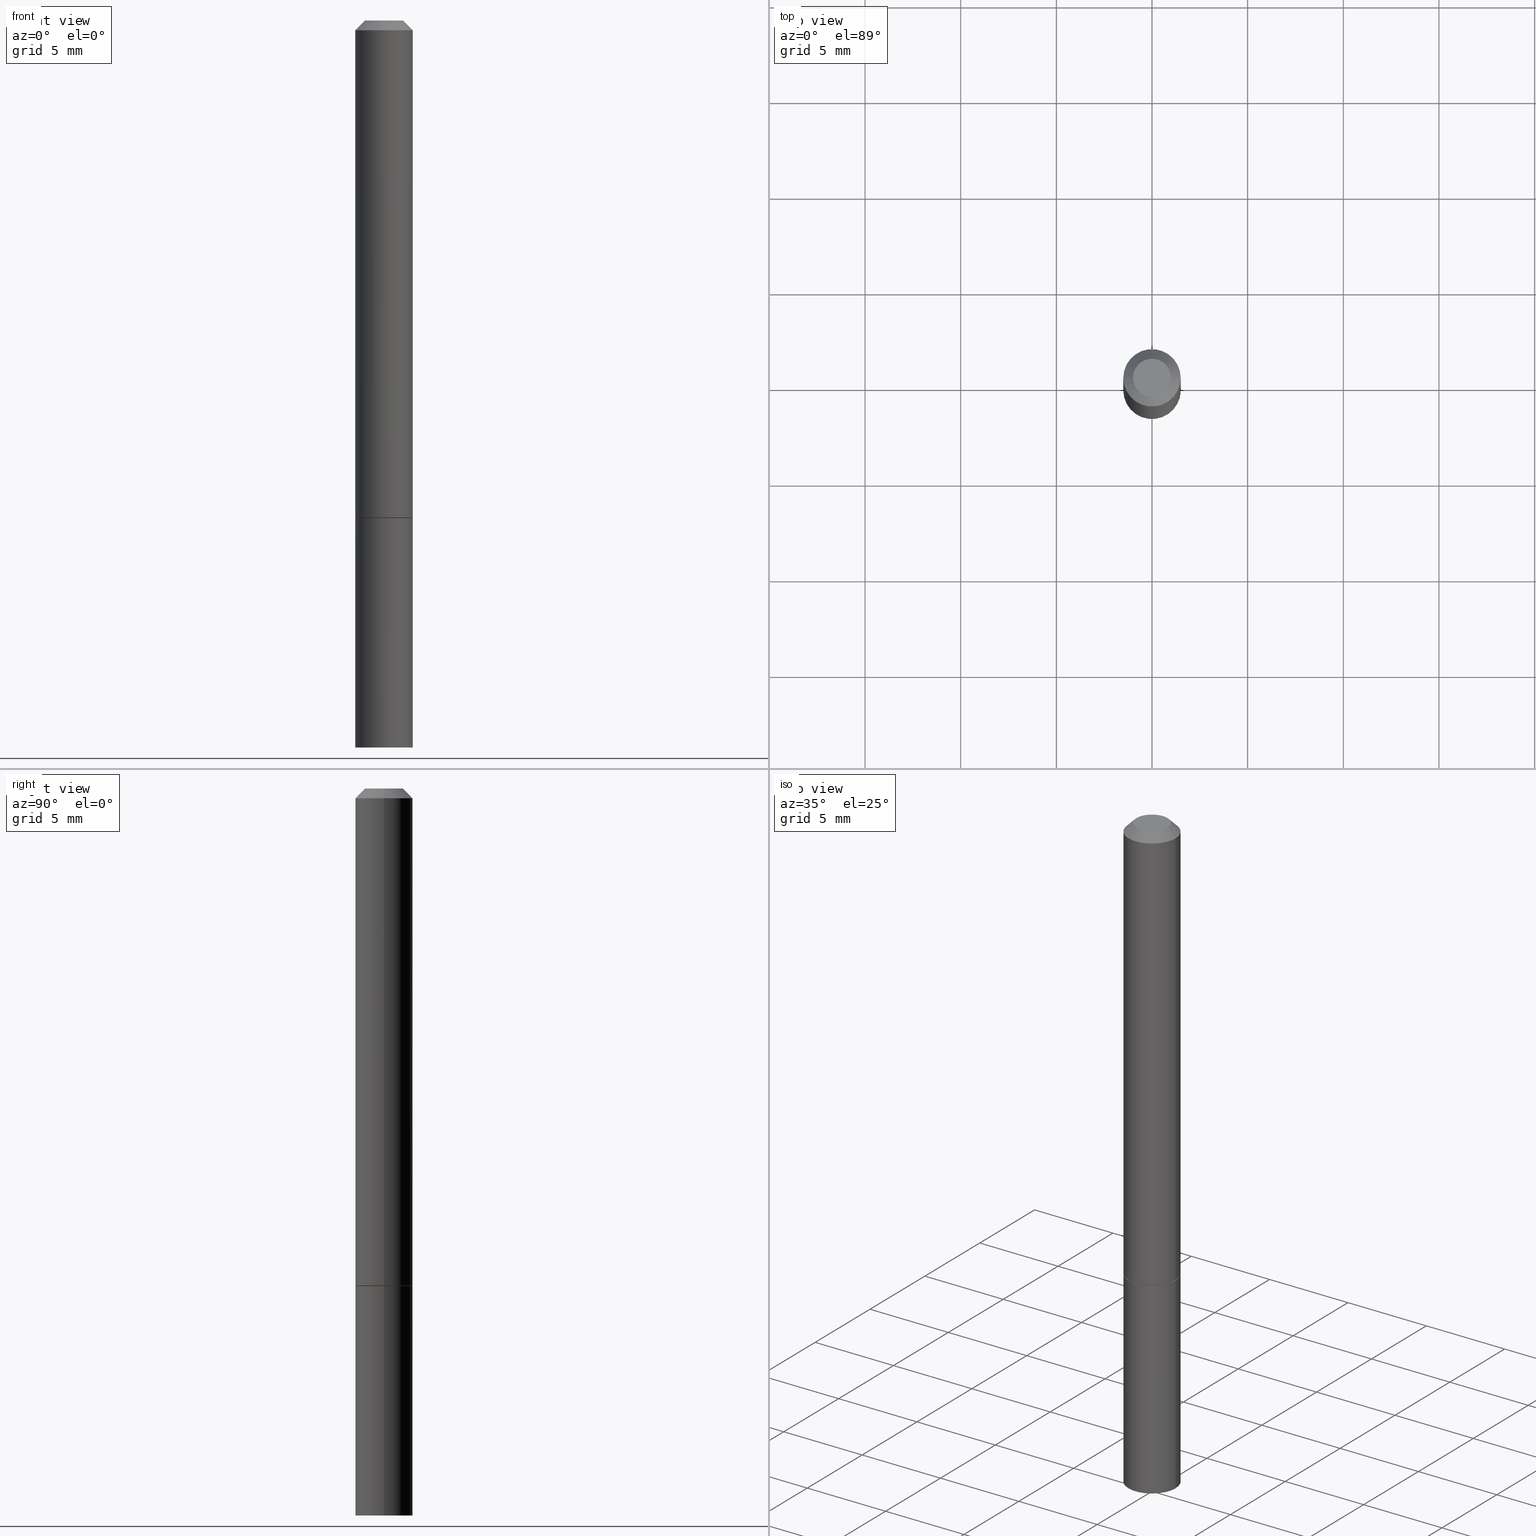
[diagram: canonical four-view strip — front | top / right | iso, engineering-drawing reading convention]
A machine part, canonical four-view strip (front | top / right | iso — engineering-drawing reading convention). The complete STEP part file that produces these views, byte-faithful:
ISO-10303-21;
HEADER;
FILE_DESCRIPTION (( 'STEP AP203' ),
    '1' );
FILE_NAME ('48504.STEP',
    '2024-02-28T11:12:14',
    ( '' ),
    ( '' ),
    'SwSTEP 2.0',
    'SolidWorks 2023',
    '' );
FILE_SCHEMA (( 'CONFIG_CONTROL_DESIGN' ));
ENDSEC;

DATA;
#1 = ORIENTED_EDGE ( 'NONE', *, *, #123, .F. ) ;
#2 = CIRCLE ( 'NONE', #361, 0.05904999999999988036 ) ;
#3 = DIRECTION ( 'NONE',  ( 2.438088387897960049E-29, -3.491481338843145188E-15, -1.000000000000000000 ) ) ;
#4 = APPROVAL_STATUS ( 'not_yet_approved' ) ;
#5 = CARTESIAN_POINT ( 'NONE',  ( 0.03904999999999989035, -3.714222401791245450E-16, -5.549066237130309406E-17 ) ) ;
#6 = DIRECTION ( 'NONE',  ( -0.7071067811866199593, 7.493145998870616062E-15, 0.7071067811864750752 ) ) ;
#7 = EDGE_CURVE ( 'NONE', #89, #288, #121, .T. ) ;
#8 = AXIS2_PLACEMENT_3D ( 'NONE', #220, #42, #218 ) ;
#9 = SECURITY_CLASSIFICATION_LEVEL ( 'unclassified' ) ;
#10 = FACE_OUTER_BOUND ( 'NONE', #79, .T. ) ;
#11 = ADVANCED_FACE ( 'NONE', ( #31 ), #255, .T. ) ;
#12 = AXIS2_PLACEMENT_3D ( 'NONE', #307, #276, #244 ) ;
#13 = DATE_TIME_ROLE ( 'classification_date' ) ;
#14 = CARTESIAN_POINT ( 'NONE',  ( -0.05805000000000001131, -3.161759388464989128E-15, -1.023699999999999832 ) ) ;
#15 = LOCAL_TIME ( 6, 12, 14.00000000000000000, #99 ) ;
#16 = ORIENTED_EDGE ( 'NONE', *, *, #140, .T. ) ;
#17 = CARTESIAN_POINT ( 'NONE',  ( 2.500980948085539022E-29, -3.570737965234884606E-15, -1.022699999999999942 ) ) ;
#18 = ORIENTED_EDGE ( 'NONE', *, *, #95, .F. ) ;
#19 = CARTESIAN_POINT ( 'NONE',  ( -0.05905000000000001914, -3.979341853342139538E-15, -1.496099999999999985 ) ) ;
#20 = ORIENTED_EDGE ( 'NONE', *, *, #300, .T. ) ;
#21 = DIRECTION ( 'NONE',  ( -2.445468806185136597E-29, 3.491481338843145583E-15, 1.000000000000000000 ) ) ;
#22 = AXIS2_PLACEMENT_3D ( 'NONE', #37, #174, #262 ) ;
#23 = AXIS2_PLACEMENT_3D ( 'NONE', #91, #77, #212 ) ;
#24 = VERTEX_POINT ( 'NONE', #60 ) ;
#25 = MANIFOLD_SOLID_BREP ( 'Body-Move/Copy2[1]', #240 ) ;
#26 = CARTESIAN_POINT ( 'NONE',  ( -0.03904999999999989035, 3.075995059520788882E-16, -5.549066237130737733E-17 ) ) ;
#27 = DIRECTION ( 'NONE',  ( 1.000000000000000000, -6.982962677686270655E-15, 0.000000000000000000 ) ) ;
#28 = COORDINATED_UNIVERSAL_TIME_OFFSET ( 5, 0, .BEHIND. ) ;
#29 = ORIENTED_EDGE ( 'NONE', *, *, #110, .F. ) ;
#30 = AXIS2_PLACEMENT_3D ( 'NONE', #292, #96, #69 ) ;
#31 = FACE_OUTER_BOUND ( 'NONE', #113, .T. ) ;
#32 = APPROVAL_PERSON_ORGANIZATION ( #203, #127, #68 ) ;
#33 = PERSON_AND_ORGANIZATION ( #102, #352 ) ;
#34 = DIRECTION ( 'NONE',  ( 0.7071067811866199593, -2.468850131083015945E-15, 0.7071067811864750752 ) ) ;
#35 = FACE_OUTER_BOUND ( 'NONE', #249, .T. ) ;
#36 = APPROVAL_STATUS ( 'not_yet_approved' ) ;
#37 = CARTESIAN_POINT ( 'NONE',  ( 1.357006838635785746E-45, -1.937446121494581442E-31, -5.549066237130534971E-17 ) ) ;
#38 = CARTESIAN_POINT ( 'NONE',  ( 0.05905000000000001914, -4.123439461173741806E-16, 2.879382386107500921E-30 ) ) ;
#39 = ADVANCED_FACE ( 'NONE', ( #56 ), #107, .F. ) ;
#40 = CARTESIAN_POINT ( 'NONE',  ( -0.05905000000000001914, -3.979341853342139538E-15, -1.023699999999999832 ) ) ;
#41 = SHAPE_DEFINITION_REPRESENTATION ( #115, #350 ) ;
#42 = DIRECTION ( 'NONE',  ( -2.445468806185136597E-29, 3.491481338843145583E-15, 1.000000000000000000 ) ) ;
#43 = AXIS2_PLACEMENT_3D ( 'NONE', #124, #318, #178 ) ;
#44 = APPROVAL_PERSON_ORGANIZATION ( #33, #187, #144 ) ;
#45 = CC_DESIGN_PERSON_AND_ORGANIZATION_ASSIGNMENT ( #228, #93, ( #299 ) ) ;
#46 = CARTESIAN_POINT ( 'NONE',  ( 0.000000000000000000, 0.000000000000000000, 0.000000000000000000 ) ) ;
#47 = ADVANCED_FACE ( 'NONE', ( #117 ), #326, .T. ) ;
#48 = FACE_OUTER_BOUND ( 'NONE', #207, .T. ) ;
#49 = FACE_OUTER_BOUND ( 'NONE', #57, .T. ) ;
#50 = VERTEX_POINT ( 'NONE', #66 ) ;
#51 = FACE_OUTER_BOUND ( 'NONE', #277, .T. ) ;
#52 = AXIS2_PLACEMENT_3D ( 'NONE', #322, #238, #94 ) ;
#53 = EDGE_LOOP ( 'NONE', ( #194, #18, #308, #302 ) ) ;
#54 = PERSON_AND_ORGANIZATION_ROLE ( 'design_owner' ) ;
#55 = ADVANCED_FACE ( 'NONE', ( #233 ), #76, .T. ) ;
#56 = FACE_OUTER_BOUND ( 'NONE', #283, .T. ) ;
#57 = EDGE_LOOP ( 'NONE', ( #1, #100 ) ) ;
#58 = LENGTH_MEASURE_WITH_UNIT ( LENGTH_MEASURE( 0.02539999999999999897 ), #224 );
#59 = AXIS2_PLACEMENT_3D ( 'NONE', #206, #145, #70 ) ;
#60 = CARTESIAN_POINT ( 'NONE',  ( 0.05905000000000001914, -3.986573392691101744E-15, -1.023699999999999832 ) ) ;
#61 = EDGE_CURVE ( 'NONE', #339, #366, #258, .T. ) ;
#62 = CALENDAR_DATE ( 2024, 28, 2 ) ;
#63 = DIRECTION ( 'NONE',  ( -2.445468806185136597E-29, 3.491481338843145583E-15, 1.000000000000000000 ) ) ;
#64 = COORDINATED_UNIVERSAL_TIME_OFFSET ( 5, 0, .BEHIND. ) ;
#65 = DIRECTION ( 'NONE',  ( -2.445468806185136877E-29, 3.491481338843145188E-15, 1.000000000000000000 ) ) ;
#66 = CARTESIAN_POINT ( 'NONE',  ( 0.05905000000000001914, -5.635949177160603791E-15, -1.496099999999999985 ) ) ;
#67 = CC_DESIGN_SECURITY_CLASSIFICATION ( #337, ( #299 ) ) ;
#68 = APPROVAL_ROLE ( '' ) ;
#69 = DIRECTION ( 'NONE',  ( 1.000000000000000000, -6.982962677686266711E-15, 0.000000000000000000 ) ) ;
#70 = DIRECTION ( 'NONE',  ( 1.000000000000000000, -6.982962677686270655E-15, 0.000000000000000000 ) ) ;
#71 = DATE_AND_TIME ( #320, #15 ) ;
#72 = EDGE_LOOP ( 'NONE', ( #165, #133, #16, #364 ) ) ;
#73 = EDGE_CURVE ( 'NONE', #272, #366, #184, .T. ) ;
#74 = VECTOR ( 'NONE', #186, 39.37007874015748143 ) ;
#75 = PLANE ( 'NONE',  #232 ) ;
#76 = CONICAL_SURFACE ( 'NONE', #59, 0.05805000000000001131, 0.7853981633975507526 ) ;
#77 = DIRECTION ( 'NONE',  ( -2.445468806185136597E-29, 3.491481338843145583E-15, 1.000000000000000000 ) ) ;
#78 = CIRCLE ( 'NONE', #205, 0.05905000000000001914 ) ;
#79 = EDGE_LOOP ( 'NONE', ( #87, #353, #284, #114 ) ) ;
#80 = LINE ( 'NONE', #156, #74 ) ;
#81 = ORIENTED_EDGE ( 'NONE', *, *, #360, .F. ) ;
#82 = CARTESIAN_POINT ( 'NONE',  ( -0.05905000000000001914, -1.400708310539532881E-15, -1.022699999999999942 ) ) ;
#83 = ORIENTED_EDGE ( 'NONE', *, *, #250, .T. ) ;
#84 = PRODUCT_RELATED_PRODUCT_CATEGORY ( 'detail', '', ( #287 ) ) ;
#85 = FACE_OUTER_BOUND ( 'NONE', #214, .T. ) ;
#86 = ORIENTED_EDGE ( 'NONE', *, *, #195, .T. ) ;
#87 = ORIENTED_EDGE ( 'NONE', *, *, #321, .F. ) ;
#88 = PRODUCT_DEFINITION ( 'UNKNOWN', '', #299, #157 ) ;
#89 = VERTEX_POINT ( 'NONE', #149 ) ;
#90 = DIRECTION ( 'NONE',  ( 1.000000000000000000, 0.000000000000000000, 0.000000000000000000 ) ) ;
#91 = CARTESIAN_POINT ( 'NONE',  ( 0.000000000000000000, 0.000000000000000000, 0.000000000000000000 ) ) ;
#92 = LOCAL_TIME ( 6, 12, 14.00000000000000000, #289 ) ;
#93 = PERSON_AND_ORGANIZATION_ROLE ( 'creator' ) ;
#94 = DIRECTION ( 'NONE',  ( 1.000000000000000000, -6.982962677686270655E-15, 0.000000000000000000 ) ) ;
#95 = EDGE_CURVE ( 'NONE', #306, #159, #236, .T. ) ;
#96 = DIRECTION ( 'NONE',  ( -2.445468806185136597E-29, 3.491481338843145583E-15, 1.000000000000000000 ) ) ;
#97 = AXIS2_PLACEMENT_3D ( 'NONE', #116, #259, #90 ) ;
#98 = DATE_AND_TIME ( #251, #177 ) ;
#99 = COORDINATED_UNIVERSAL_TIME_OFFSET ( 5, 0, .BEHIND. ) ;
#100 = ORIENTED_EDGE ( 'NONE', *, *, #7, .F. ) ;
#101 = VECTOR ( 'NONE', #295, 39.37007874015748143 ) ;
#102 = PERSON ( 'UNSPECIFIED', 'UNSPECIFIED', 'UNSPECIFIED', ('UNSPECIFIED'), ('UNSPECIFIED'), ('UNSPECIFIED') ) ;
#103 = APPROVAL_PERSON_ORGANIZATION ( #310, #267, #169 ) ;
#104 = CC_DESIGN_PERSON_AND_ORGANIZATION_ASSIGNMENT ( #201, #260, ( #299 ) ) ;
#105 = PLANE ( 'NONE',  #155 ) ;
#106 = CARTESIAN_POINT ( 'NONE',  ( 1.357006838635785746E-45, -1.937446121494581442E-31, -5.549066237130534971E-17 ) ) ;
#107 = PLANE ( 'NONE',  #316 ) ;
#108 = CARTESIAN_POINT ( 'NONE',  ( 2.503426416891723784E-29, -3.574229446573727613E-15, -1.023699999999999832 ) ) ;
#109 = ORIENTED_EDGE ( 'NONE', *, *, #356, .F. ) ;
#110 = EDGE_CURVE ( 'NONE', #339, #182, #170, .T. ) ;
#111 = DIRECTION ( 'NONE',  ( 0.7071067811865469066, -7.319954787623252890E-15, -0.7071067811865479058 ) ) ;
#112 = APPLICATION_CONTEXT ( 'configuration controlled 3d designs of mechanical parts and assemblies' ) ;
#113 = EDGE_LOOP ( 'NONE', ( #332, #83, #135, #362 ) ) ;
#114 = ORIENTED_EDGE ( 'NONE', *, *, #229, .F. ) ;
#115 = PRODUCT_DEFINITION_SHAPE ( 'NONE', 'NONE',  #88 ) ;
#116 = CARTESIAN_POINT ( 'NONE',  ( 0.000000000000000000, 0.000000000000000000, 0.000000000000000000 ) ) ;
#117 = FACE_OUTER_BOUND ( 'NONE', #53, .T. ) ;
#118 = APPROVAL_DATE_TIME ( #345, #187 ) ;
#119 = DIRECTION ( 'NONE',  ( -1.000000000000000000, 6.982962677686266711E-15, 0.000000000000000000 ) ) ;
#120 = PERSON_AND_ORGANIZATION ( #102, #352 ) ;
#121 = CIRCLE ( 'NONE', #222, 0.05805000000000001131 ) ;
#122 = CIRCLE ( 'NONE', #253, 0.03904999999999989035 ) ;
#123 = EDGE_CURVE ( 'NONE', #288, #89, #208, .T. ) ;
#124 = CARTESIAN_POINT ( 'NONE',  ( 2.500980948085539022E-29, -3.570737965234884606E-15, -1.022699999999999942 ) ) ;
#125 = AXIS2_PLACEMENT_3D ( 'NONE', #225, #245, #137 ) ;
#126 = CC_DESIGN_APPROVAL ( #127, ( #337 ) ) ;
#127 = APPROVAL ( #354, 'UNSPECIFIED' ) ;
#128 = CC_DESIGN_APPROVAL ( #187, ( #299 ) ) ;
#129 = CARTESIAN_POINT ( 'NONE',  ( 4.123439461173991776E-16, 0.05904999999999643867, -1.023700000000000054 ) ) ;
#130 = ORIENTED_EDGE ( 'NONE', *, *, #95, .T. ) ;
#131 = DIRECTION ( 'NONE',  ( -1.000000000000000000, 6.982962677686265922E-15, -4.876176775795935793E-29 ) ) ;
#132 = DIRECTION ( 'NONE',  ( 1.000000000000000000, -6.982962677686262766E-15, 0.000000000000000000 ) ) ;
#133 = ORIENTED_EDGE ( 'NONE', *, *, #110, .T. ) ;
#134 = CARTESIAN_POINT ( 'NONE',  ( 3.658665880933582389E-29, -5.223605231043229660E-15, -1.496099999999999985 ) ) ;
#135 = ORIENTED_EDGE ( 'NONE', *, *, #300, .F. ) ;
#136 = DIRECTION ( 'NONE',  ( -2.445468806185136597E-29, 3.491481338843145583E-15, 1.000000000000000000 ) ) ;
#137 = DIRECTION ( 'NONE',  ( 1.000000000000000000, -6.982962677686266711E-15, 4.876176775795935793E-29 ) ) ;
#138 = PERSON_AND_ORGANIZATION ( #102, #352 ) ;
#139 = DIRECTION ( 'NONE',  ( -1.000000000000000000, 6.982962677686265922E-15, -4.876176775795935793E-29 ) ) ;
#140 = EDGE_CURVE ( 'NONE', #182, #272, #235, .T. ) ;
#141 = CARTESIAN_POINT ( 'NONE',  ( -0.05904999999999988036, 3.425143193405099949E-16, -0.02000000000000007674 ) ) ;
#142 = CONICAL_SURFACE ( 'NONE', #8, 0.05805000000000001131, 0.7853981633975507526 ) ;
#143 = ORIENTED_EDGE ( 'NONE', *, *, #61, .T. ) ;
#144 = APPROVAL_ROLE ( '' ) ;
#145 = DIRECTION ( 'NONE',  ( -2.445468806185136597E-29, 3.491481338843145583E-15, 1.000000000000000000 ) ) ;
#146 = MECHANICAL_CONTEXT ( 'NONE', #112, 'mechanical' ) ;
#147 = AXIS2_PLACEMENT_3D ( 'NONE', #17, #136, #330 ) ;
#148 = EDGE_CURVE ( 'NONE', #366, #272, #2, .T. ) ;
#149 = CARTESIAN_POINT ( 'NONE',  ( -0.05805000000000001131, -3.156460934116767120E-15, -1.023699999999999832 ) ) ;
#150 = CARTESIAN_POINT ( 'NONE',  ( 0.05905000000000001914, -3.983081911352258737E-15, -1.022699999999999942 ) ) ;
#151 = EDGE_CURVE ( 'NONE', #288, #182, #204, .T. ) ;
#152 = DIRECTION ( 'NONE',  ( -2.445468806185136597E-29, 3.491481338843145583E-15, 1.000000000000000000 ) ) ;
#153 = ORIENTED_EDGE ( 'NONE', *, *, #321, .T. ) ;
#154 = CC_DESIGN_DATE_AND_TIME_ASSIGNMENT ( #173, #348, ( #88 ) ) ;
#155 = AXIS2_PLACEMENT_3D ( 'NONE', #266, #241, #131 ) ;
#156 = CARTESIAN_POINT ( 'NONE',  ( -0.05905000000000001914, 4.195754854663392958E-16, -2.904631170795522943E-30 ) ) ;
#157 = DESIGN_CONTEXT ( 'detailed design', #180, 'design' ) ;
#158 = CARTESIAN_POINT ( 'NONE',  ( -0.05904999999999988036, 3.425143193405099949E-16, -0.02000000000000007674 ) ) ;
#159 = VERTEX_POINT ( 'NONE', #5 ) ;
#160 = DIRECTION ( 'NONE',  ( 1.000000000000000000, -6.982962677686262766E-15, 0.000000000000000000 ) ) ;
#161 = VERTEX_POINT ( 'NONE', #40 ) ;
#162 = VECTOR ( 'NONE', #351, 39.37007874015748143 ) ;
#163 = CARTESIAN_POINT ( 'NONE',  ( 0.05904999999999988036, -4.749420335452712790E-16, -0.02000000000000007674 ) ) ;
#164 = CONICAL_SURFACE ( 'NONE', #192, 0.05904999999999988036, 0.7853981633974476129 ) ;
#165 = ORIENTED_EDGE ( 'NONE', *, *, #61, .F. ) ;
#166 = PERSON_AND_ORGANIZATION_ROLE ( 'classification_officer' ) ;
#167 = CARTESIAN_POINT ( 'NONE',  ( 2.726846925636479293E-16, 0.03904999999999989035, -1.640876774674771079E-16 ) ) ;
#168 = ORIENTED_EDGE ( 'NONE', *, *, #123, .T. ) ;
#169 = APPROVAL_ROLE ( '' ) ;
#170 = CIRCLE ( 'NONE', #43, 0.05905000000000001914 ) ;
#171 = AXIS2_PLACEMENT_3D ( 'NONE', #129, #359, #363 ) ;
#172 = EDGE_LOOP ( 'NONE', ( #20, #247 ) ) ;
#173 = DATE_AND_TIME ( #62, #293 ) ;
#174 = DIRECTION ( 'NONE',  ( -2.445468806185136597E-29, 3.491481338843145583E-15, 1.000000000000000000 ) ) ;
#175 = CARTESIAN_POINT ( 'NONE',  ( 3.658665880933582389E-29, -5.223605231043229660E-15, -1.496099999999999985 ) ) ;
#176 = ADVANCED_FACE ( 'NONE', ( #10 ), #164, .T. ) ;
#177 = LOCAL_TIME ( 6, 12, 14.00000000000000000, #28 ) ;
#178 = DIRECTION ( 'NONE',  ( 1.000000000000000000, -6.982962677686262766E-15, 0.000000000000000000 ) ) ;
#179 = CC_DESIGN_PERSON_AND_ORGANIZATION_ASSIGNMENT ( #138, #231, ( #88 ) ) ;
#180 = APPLICATION_CONTEXT ( 'configuration controlled 3d designs of mechanical parts and assemblies' ) ;
#181 = APPROVAL_DATE_TIME ( #71, #127 ) ;
#182 = VERTEX_POINT ( 'NONE', #150 ) ;
#183 = DIRECTION ( 'NONE',  ( -2.438088387897960049E-29, 3.491481338843145188E-15, 1.000000000000000000 ) ) ;
#184 = CIRCLE ( 'NONE', #30, 0.05904999999999988036 ) ;
#185 = CC_DESIGN_APPROVAL ( #267, ( #88 ) ) ;
#186 = DIRECTION ( 'NONE',  ( -2.445468806185136877E-29, 3.491481338843145188E-15, 1.000000000000000000 ) ) ;
#187 = APPROVAL ( #4, 'UNSPECIFIED' ) ;
#188 = FACE_OUTER_BOUND ( 'NONE', #72, .T. ) ;
#189 = ORIENTED_EDGE ( 'NONE', *, *, #360, .T. ) ;
#190 = LINE ( 'NONE', #14, #265 ) ;
#191 = ORIENTED_EDGE ( 'NONE', *, *, #151, .T. ) ;
#192 = AXIS2_PLACEMENT_3D ( 'NONE', #290, #346, #119 ) ;
#193 = PERSON_AND_ORGANIZATION ( #102, #352 ) ;
#194 = ORIENTED_EDGE ( 'NONE', *, *, #239, .F. ) ;
#195 = EDGE_CURVE ( 'NONE', #50, #24, #230, .T. ) ;
#196 = ORIENTED_EDGE ( 'NONE', *, *, #140, .F. ) ;
#197 = ORIENTED_EDGE ( 'NONE', *, *, #250, .F. ) ;
#198 = DATE_AND_TIME ( #286, #309 ) ;
#199 = AXIS2_PLACEMENT_3D ( 'NONE', #328, #301, #132 ) ;
#200 = CARTESIAN_POINT ( 'NONE',  ( -0.05904999999999994975, 4.195754854663388027E-16, -2.904631170795519440E-30 ) ) ;
#201 = PERSON_AND_ORGANIZATION ( #102, #352 ) ;
#202 = CARTESIAN_POINT ( 'NONE',  ( 0.05805000000000001131, -3.979590430013415730E-15, -1.023699999999999832 ) ) ;
#203 = PERSON_AND_ORGANIZATION ( #102, #352 ) ;
#204 = LINE ( 'NONE', #202, #344 ) ;
#205 = AXIS2_PLACEMENT_3D ( 'NONE', #271, #21, #160 ) ;
#206 = CARTESIAN_POINT ( 'NONE',  ( 2.503426416891723784E-29, -3.574229446573727613E-15, -1.023699999999999832 ) ) ;
#207 = EDGE_LOOP ( 'NONE', ( #109, #331, #191, #29 ) ) ;
#208 = CIRCLE ( 'NONE', #52, 0.05805000000000001131 ) ;
#209 = CIRCLE ( 'NONE', #199, 0.05905000000000001914 ) ;
#210 = ADVANCED_FACE ( 'NONE', ( #35 ), #349, .T. ) ;
#211 = LINE ( 'NONE', #158, #215 ) ;
#212 = DIRECTION ( 'NONE',  ( 1.000000000000000000, -6.982962677686266711E-15, 4.876176775795935793E-29 ) ) ;
#213 = ADVANCED_FACE ( 'NONE', ( #51 ), #335, .T. ) ;
#214 = EDGE_LOOP ( 'NONE', ( #314, #81 ) ) ;
#215 = VECTOR ( 'NONE', #297, 39.37007874015748854 ) ;
#216 = DIRECTION ( 'NONE',  ( 1.000000000000000000, -6.982962677686265922E-15, 4.873707401586876696E-29 ) ) ;
#217 = DIRECTION ( 'NONE',  ( -1.000000000000000000, 6.982962677686266711E-15, 0.000000000000000000 ) ) ;
#218 = DIRECTION ( 'NONE',  ( 1.000000000000000000, -6.982962677686270655E-15, 0.000000000000000000 ) ) ;
#219 = ORIENTED_EDGE ( 'NONE', *, *, #151, .F. ) ;
#220 = CARTESIAN_POINT ( 'NONE',  ( 2.503426416891723784E-29, -3.574229446573727613E-15, -1.023699999999999832 ) ) ;
#221 = ORIENTED_EDGE ( 'NONE', *, *, #356, .T. ) ;
#222 = AXIS2_PLACEMENT_3D ( 'NONE', #334, #281, #27 ) ;
#223 = AXIS2_PLACEMENT_3D ( 'NONE', #175, #254, #226 ) ;
#224 =( LENGTH_UNIT ( ) NAMED_UNIT ( * ) SI_UNIT ( $, .METRE. ) );
#225 = CARTESIAN_POINT ( 'NONE',  ( 0.000000000000000000, 0.000000000000000000, 0.000000000000000000 ) ) ;
#226 = DIRECTION ( 'NONE',  ( 1.000000000000000000, -6.982962677686270655E-15, 0.000000000000000000 ) ) ;
#227 = CARTESIAN_POINT ( 'NONE',  ( 4.890937612370292426E-31, -6.982962677686317493E-17, -0.02000000000000007674 ) ) ;
#228 = PERSON_AND_ORGANIZATION ( #102, #352 ) ;
#229 = EDGE_CURVE ( 'NONE', #306, #366, #211, .T. ) ;
#230 = LINE ( 'NONE', #38, #355 ) ;
#231 = PERSON_AND_ORGANIZATION_ROLE ( 'creator' ) ;
#232 = AXIS2_PLACEMENT_3D ( 'NONE', #108, #183, #357 ) ;
#233 = FACE_OUTER_BOUND ( 'NONE', #275, .T. ) ;
#234 = APPLICATION_PROTOCOL_DEFINITION ( 'international standard', 'config_control_design', 1994, #112 ) ;
#235 = LINE ( 'NONE', #324, #101 ) ;
#236 = CIRCLE ( 'NONE', #22, 0.03904999999999989035 ) ;
#237 = AXIS2_PLACEMENT_3D ( 'NONE', #46, #248, #358 ) ;
#238 = DIRECTION ( 'NONE',  ( -2.445468806185136597E-29, 3.491481338843145583E-15, 1.000000000000000000 ) ) ;
#239 = EDGE_CURVE ( 'NONE', #159, #272, #305, .T. ) ;
#240 = CLOSED_SHELL ( 'NONE', ( #11, #329, #257, #210 ) ) ;
#241 = DIRECTION ( 'NONE',  ( 2.438088387897960049E-29, -3.491481338843145188E-15, -1.000000000000000000 ) ) ;
#242 = ADVANCED_FACE ( 'NONE', ( #49 ), #75, .F. ) ;
#243 = CARTESIAN_POINT ( 'NONE',  ( 0.05904999999999988036, -4.749420335452712790E-16, -0.02000000000000007674 ) ) ;
#244 = DIRECTION ( 'NONE',  ( 1.000000000000000000, -6.982962677686266711E-15, 4.876176775795935232E-29 ) ) ;
#245 = DIRECTION ( 'NONE',  ( -2.445468806185136597E-29, 3.491481338843145583E-15, 1.000000000000000000 ) ) ;
#246 = DIRECTION ( 'NONE',  ( -2.445468806185136597E-29, 3.491481338843145583E-15, 1.000000000000000000 ) ) ;
#247 = ORIENTED_EDGE ( 'NONE', *, *, #325, .T. ) ;
#248 = DIRECTION ( 'NONE',  ( -2.445468806185136597E-29, 3.491481338843145583E-15, 1.000000000000000000 ) ) ;
#249 = EDGE_LOOP ( 'NONE', ( #197, #189, #86, #252 ) ) ;
#250 = EDGE_CURVE ( 'NONE', #315, #161, #80, .T. ) ;
#251 = CALENDAR_DATE ( 2024, 28, 2 ) ;
#252 = ORIENTED_EDGE ( 'NONE', *, *, #325, .F. ) ;
#253 = AXIS2_PLACEMENT_3D ( 'NONE', #106, #152, #216 ) ;
#254 = DIRECTION ( 'NONE',  ( -2.445468806185136597E-29, 3.491481338843145583E-15, 1.000000000000000000 ) ) ;
#255 = CYLINDRICAL_SURFACE ( 'NONE', #125, 0.05905000000000001914 ) ;
#256 = CALENDAR_DATE ( 2024, 28, 2 ) ;
#257 = ADVANCED_FACE ( 'NONE', ( #279 ), #365, .F. ) ;
#258 = LINE ( 'NONE', #200, #162 ) ;
#259 = DIRECTION ( 'NONE',  ( 0.000000000000000000, 0.000000000000000000, 1.000000000000000000 ) ) ;
#260 = PERSON_AND_ORGANIZATION_ROLE ( 'design_supplier' ) ;
#261 =( GEOMETRIC_REPRESENTATION_CONTEXT ( 3 ) GLOBAL_UNCERTAINTY_ASSIGNED_CONTEXT ( ( #303 ) ) GLOBAL_UNIT_ASSIGNED_CONTEXT ( ( #312, #317, #341 ) ) REPRESENTATION_CONTEXT ( 'NONE', 'WORKASPACE' ) );
#262 = DIRECTION ( 'NONE',  ( 1.000000000000000000, -6.982962677686265922E-15, 4.873707401586876696E-29 ) ) ;
#263 = EDGE_CURVE ( 'NONE', #182, #339, #278, .T. ) ;
#264 = AXIS2_PLACEMENT_3D ( 'NONE', #227, #340, #217 ) ;
#265 = VECTOR ( 'NONE', #6, 39.37007874015748143 ) ;
#266 = CARTESIAN_POINT ( 'NONE',  ( 4.123439461174106654E-16, 0.05904999999999479415, -1.496100000000000207 ) ) ;
#267 = APPROVAL ( #36, 'UNSPECIFIED' ) ;
#268 = VECTOR ( 'NONE', #111, 39.37007874015748854 ) ;
#269 = ORIENTED_EDGE ( 'NONE', *, *, #263, .T. ) ;
#270 = DIMENSIONAL_EXPONENTS ( 1.000000000000000000, 0.000000000000000000, 0.000000000000000000, 0.000000000000000000, 0.000000000000000000, 0.000000000000000000, 0.000000000000000000 ) ;
#271 = CARTESIAN_POINT ( 'NONE',  ( 2.503426416891723784E-29, -3.574229446573727613E-15, -1.023699999999999832 ) ) ;
#272 = VERTEX_POINT ( 'NONE', #243 ) ;
#273 = CYLINDRICAL_SURFACE ( 'NONE', #12, 0.05904999999999994975 ) ;
#274 = MANIFOLD_SOLID_BREP ( 'Body-Move/Copy2[2]', #343 ) ;
#275 = EDGE_LOOP ( 'NONE', ( #168, #221, #336, #219 ) ) ;
#276 = DIRECTION ( 'NONE',  ( -2.445468806185136597E-29, 3.491481338843145583E-15, 1.000000000000000000 ) ) ;
#277 = EDGE_LOOP ( 'NONE', ( #269, #143, #311, #196 ) ) ;
#278 = CIRCLE ( 'NONE', #147, 0.05905000000000001914 ) ;
#279 = FACE_OUTER_BOUND ( 'NONE', #172, .T. ) ;
#280 = CC_DESIGN_DATE_AND_TIME_ASSIGNMENT ( #98, #13, ( #337 ) ) ;
#281 = DIRECTION ( 'NONE',  ( -2.445468806185136597E-29, 3.491481338843145583E-15, 1.000000000000000000 ) ) ;
#282 = COORDINATED_UNIVERSAL_TIME_OFFSET ( 5, 0, .BEHIND. ) ;
#283 = EDGE_LOOP ( 'NONE', ( #130, #153 ) ) ;
#284 = ORIENTED_EDGE ( 'NONE', *, *, #73, .T. ) ;
#285 = CIRCLE ( 'NONE', #223, 0.05905000000000001914 ) ;
#286 = CALENDAR_DATE ( 2024, 28, 2 ) ;
#287 = PRODUCT ( '48504', '48504', '', ( #146 ) ) ;
#288 = VERTEX_POINT ( 'NONE', #304 ) ;
#289 = COORDINATED_UNIVERSAL_TIME_OFFSET ( 5, 0, .BEHIND. ) ;
#290 = CARTESIAN_POINT ( 'NONE',  ( 4.890937612370292426E-31, -6.982962677686317493E-17, -0.02000000000000007674 ) ) ;
#291 = APPROVAL_DATE_TIME ( #198, #267 ) ;
#292 = CARTESIAN_POINT ( 'NONE',  ( 4.890937612370292426E-31, -6.982962677686317493E-17, -0.02000000000000007674 ) ) ;
#293 = LOCAL_TIME ( 6, 12, 14.00000000000000000, #282 ) ;
#294 = CC_DESIGN_PERSON_AND_ORGANIZATION_ASSIGNMENT ( #120, #54, ( #287 ) ) ;
#295 = DIRECTION ( 'NONE',  ( -2.445468806185136877E-29, 3.491481338843145188E-15, 1.000000000000000000 ) ) ;
#296 = CARTESIAN_POINT ( 'NONE',  ( 4.890937612370292426E-31, -6.982962677686317493E-17, -0.02000000000000007674 ) ) ;
#297 = DIRECTION ( 'NONE',  ( -0.7071067811865469066, 2.468850131082251144E-15, -0.7071067811865479058 ) ) ;
#298 = ADVANCED_FACE ( 'NONE', ( #48 ), #142, .T. ) ;
#299 = PRODUCT_DEFINITION_FORMATION_WITH_SPECIFIED_SOURCE ( 'ANY', '', #287, .NOT_KNOWN. ) ;
#300 = EDGE_CURVE ( 'NONE', #24, #161, #209, .T. ) ;
#301 = DIRECTION ( 'NONE',  ( -2.445468806185136597E-29, 3.491481338843145583E-15, 1.000000000000000000 ) ) ;
#302 = ORIENTED_EDGE ( 'NONE', *, *, #148, .T. ) ;
#303 = UNCERTAINTY_MEASURE_WITH_UNIT (LENGTH_MEASURE( 1.000000000000000082E-05 ), #312, 'distance_accuracy_value', 'NONE');
#304 = CARTESIAN_POINT ( 'NONE',  ( 0.05805000000000001131, -3.979590430013415730E-15, -1.023699999999999832 ) ) ;
#305 = LINE ( 'NONE', #163, #268 ) ;
#306 = VERTEX_POINT ( 'NONE', #26 ) ;
#307 = CARTESIAN_POINT ( 'NONE',  ( 0.000000000000000000, 0.000000000000000000, 0.000000000000000000 ) ) ;
#308 = ORIENTED_EDGE ( 'NONE', *, *, #229, .T. ) ;
#309 = LOCAL_TIME ( 6, 12, 14.00000000000000000, #64 ) ;
#310 = PERSON_AND_ORGANIZATION ( #102, #352 ) ;
#311 = ORIENTED_EDGE ( 'NONE', *, *, #73, .F. ) ;
#312 =( CONVERSION_BASED_UNIT ( 'INCH', #58 ) LENGTH_UNIT ( ) NAMED_UNIT ( #270 ) );
#313 = ADVANCED_FACE ( 'NONE', ( #188 ), #273, .T. ) ;
#314 = ORIENTED_EDGE ( 'NONE', *, *, #338, .F. ) ;
#315 = VERTEX_POINT ( 'NONE', #19 ) ;
#316 = AXIS2_PLACEMENT_3D ( 'NONE', #167, #3, #139 ) ;
#317 =( NAMED_UNIT ( * ) PLANE_ANGLE_UNIT ( ) SI_UNIT ( $, .RADIAN. ) );
#318 = DIRECTION ( 'NONE',  ( -2.445468806185136597E-29, 3.491481338843145583E-15, 1.000000000000000000 ) ) ;
#319 = APPLICATION_PROTOCOL_DEFINITION ( 'international standard', 'config_control_design', 1994, #180 ) ;
#320 = CALENDAR_DATE ( 2024, 28, 2 ) ;
#321 = EDGE_CURVE ( 'NONE', #159, #306, #122, .T. ) ;
#322 = CARTESIAN_POINT ( 'NONE',  ( 2.503426416891723784E-29, -3.574229446573727613E-15, -1.023699999999999832 ) ) ;
#323 = AXIS2_PLACEMENT_3D ( 'NONE', #134, #246, #333 ) ;
#324 = CARTESIAN_POINT ( 'NONE',  ( 0.05904999999999994975, -4.123439461173736876E-16, 2.879382386107497418E-30 ) ) ;
#325 = EDGE_CURVE ( 'NONE', #161, #24, #78, .T. ) ;
#326 = CONICAL_SURFACE ( 'NONE', #264, 0.05904999999999988036, 0.7853981633974476129 ) ;
#327 = CIRCLE ( 'NONE', #323, 0.05905000000000001914 ) ;
#328 = CARTESIAN_POINT ( 'NONE',  ( 2.503426416891723784E-29, -3.574229446573727613E-15, -1.023699999999999832 ) ) ;
#329 = ADVANCED_FACE ( 'NONE', ( #85 ), #105, .T. ) ;
#330 = DIRECTION ( 'NONE',  ( 1.000000000000000000, -6.982962677686262766E-15, 0.000000000000000000 ) ) ;
#331 = ORIENTED_EDGE ( 'NONE', *, *, #7, .T. ) ;
#332 = ORIENTED_EDGE ( 'NONE', *, *, #338, .T. ) ;
#333 = DIRECTION ( 'NONE',  ( 1.000000000000000000, -6.982962677686270655E-15, 0.000000000000000000 ) ) ;
#334 = CARTESIAN_POINT ( 'NONE',  ( 2.503426416891723784E-29, -3.574229446573727613E-15, -1.023699999999999832 ) ) ;
#335 = CYLINDRICAL_SURFACE ( 'NONE', #237, 0.05904999999999994975 ) ;
#336 = ORIENTED_EDGE ( 'NONE', *, *, #263, .F. ) ;
#337 = SECURITY_CLASSIFICATION ( '', '', #9 ) ;
#338 = EDGE_CURVE ( 'NONE', #50, #315, #327, .T. ) ;
#339 = VERTEX_POINT ( 'NONE', #82 ) ;
#340 = DIRECTION ( 'NONE',  ( 2.445468806185136597E-29, -3.491481338843145583E-15, -1.000000000000000000 ) ) ;
#341 =( NAMED_UNIT ( * ) SI_UNIT ( $, .STERADIAN. ) SOLID_ANGLE_UNIT ( ) );
#342 = DIRECTION ( 'NONE',  ( 1.000000000000000000, -6.982962677686266711E-15, 0.000000000000000000 ) ) ;
#343 = CLOSED_SHELL ( 'NONE', ( #55, #213, #176, #47, #313, #298, #242, #39 ) ) ;
#344 = VECTOR ( 'NONE', #34, 39.37007874015748143 ) ;
#345 = DATE_AND_TIME ( #256, #92 ) ;
#346 = DIRECTION ( 'NONE',  ( 2.445468806185136597E-29, -3.491481338843145583E-15, -1.000000000000000000 ) ) ;
#347 = CC_DESIGN_PERSON_AND_ORGANIZATION_ASSIGNMENT ( #193, #166, ( #337 ) ) ;
#348 = DATE_TIME_ROLE ( 'creation_date' ) ;
#349 = CYLINDRICAL_SURFACE ( 'NONE', #23, 0.05905000000000001914 ) ;
#350 = ADVANCED_BREP_SHAPE_REPRESENTATION ( '48504', ( #25, #274, #97 ), #261 ) ;
#351 = DIRECTION ( 'NONE',  ( -2.445468806185136877E-29, 3.491481338843145188E-15, 1.000000000000000000 ) ) ;
#352 = ORGANIZATION ( 'UNSPECIFIED', 'UNSPECIFIED', '' ) ;
#353 = ORIENTED_EDGE ( 'NONE', *, *, #239, .T. ) ;
#354 = APPROVAL_STATUS ( 'not_yet_approved' ) ;
#355 = VECTOR ( 'NONE', #65, 39.37007874015748143 ) ;
#356 = EDGE_CURVE ( 'NONE', #89, #339, #190, .T. ) ;
#357 = DIRECTION ( 'NONE',  ( 1.000000000000000000, -6.982962677686265922E-15, 4.876176775795935793E-29 ) ) ;
#358 = DIRECTION ( 'NONE',  ( 1.000000000000000000, -6.982962677686266711E-15, 4.876176775795935232E-29 ) ) ;
#359 = DIRECTION ( 'NONE',  ( 2.438088387897960049E-29, -3.491481338843145188E-15, -1.000000000000000000 ) ) ;
#360 = EDGE_CURVE ( 'NONE', #315, #50, #285, .T. ) ;
#361 = AXIS2_PLACEMENT_3D ( 'NONE', #296, #63, #342 ) ;
#362 = ORIENTED_EDGE ( 'NONE', *, *, #195, .F. ) ;
#363 = DIRECTION ( 'NONE',  ( -1.000000000000000000, 6.982962677686265922E-15, -4.876176775795935793E-29 ) ) ;
#364 = ORIENTED_EDGE ( 'NONE', *, *, #148, .F. ) ;
#365 = PLANE ( 'NONE',  #171 ) ;
#366 = VERTEX_POINT ( 'NONE', #141 ) ;
ENDSEC;
END-ISO-10303-21;
